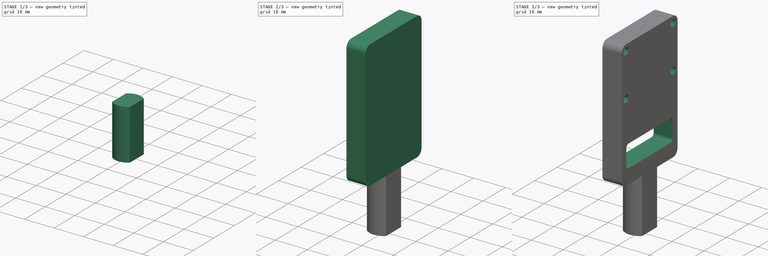
[diagram: build sequence overview — one tinted view per stage of 3, left to right]
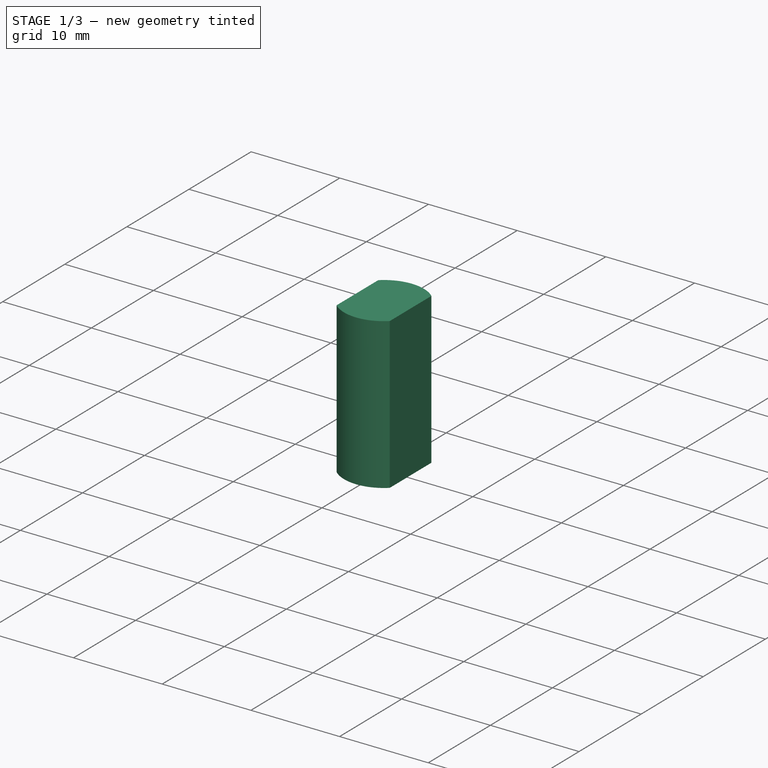
[diagram: stage 1 of 3 — iso view after this stage's code; geometry added in this stage tinted green]
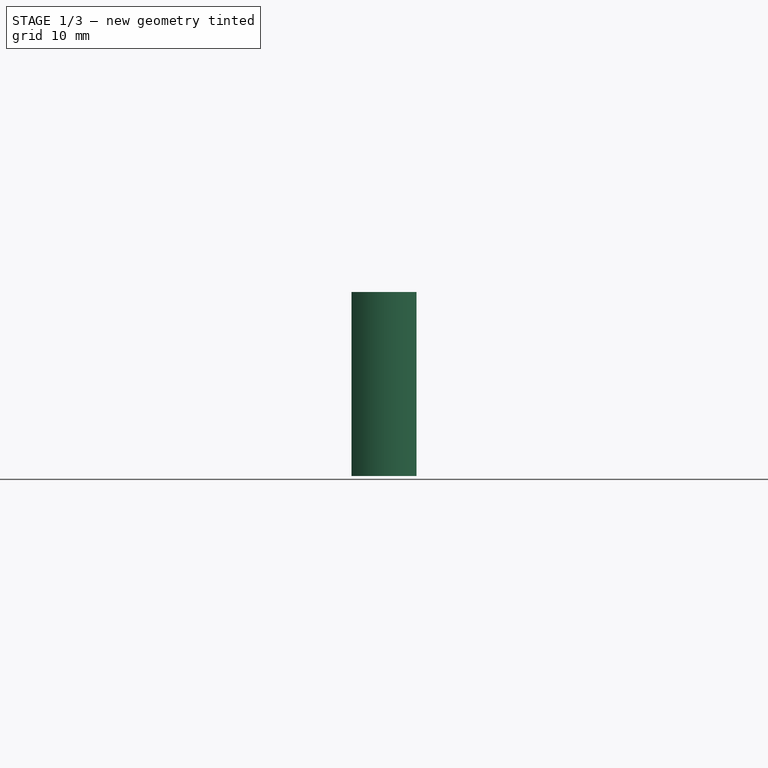
[diagram: stage 1 of 3 — front view after this stage's code; geometry added in this stage tinted green]
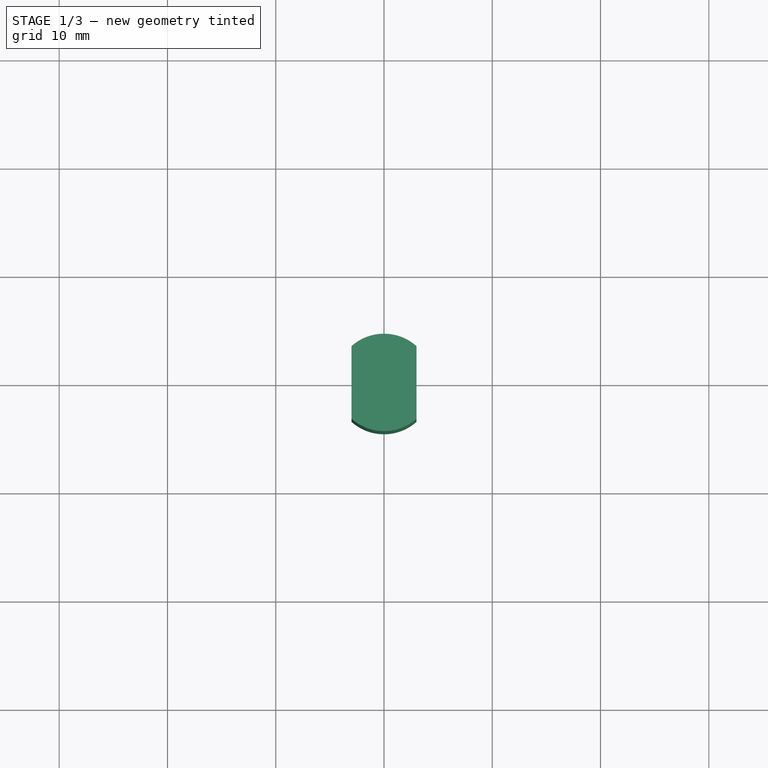
[diagram: stage 1 of 3 — top view after this stage's code; geometry added in this stage tinted green]
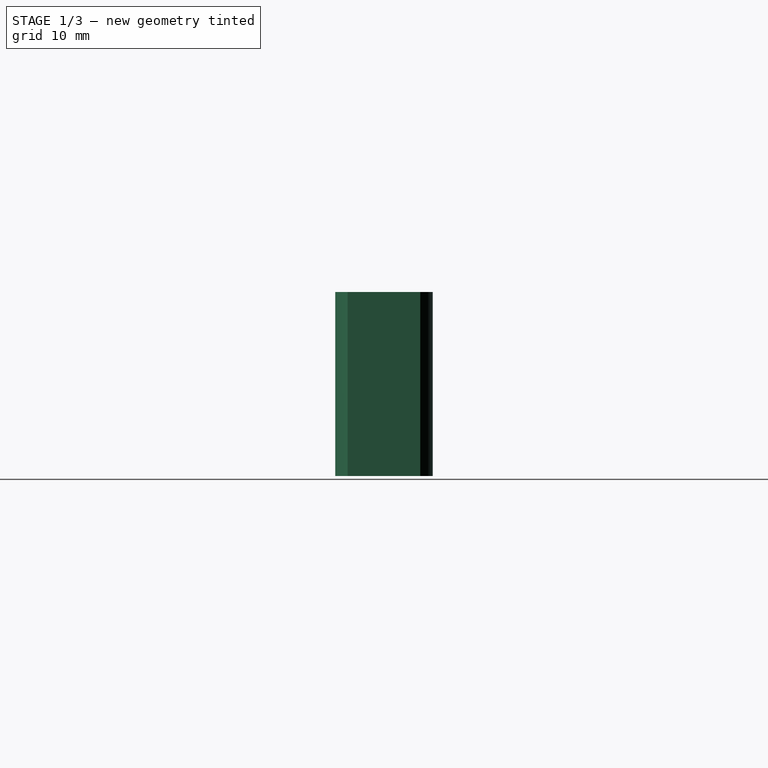
[diagram: stage 1 of 3 — right view after this stage's code; geometry added in this stage tinted green]
FCSTD DOCUMENT  (FreeCAD 0.18.4R)
Label: camera_mount
License: All rights reserved
LicenseURL: http://en.wikipedia.org/wiki/All_rights_reserved
objects: Sketcher::SketchObject×5, PartDesign::Pocket×3, PartDesign::Pad×2, PartDesign::Body×1
note: 16 computed .brp shape members not serialized (recipe doc carries the construction recipe); baked Part::Feature solids carry a one-line shape summary decoded from their .brp

FEATURE [Sketcher::SketchObject] Sketch
  MapMode = 5
  Support = -> [XY_Plane]
  sketch-geometry (4):
    g0: LineSegment StartX=1.5 StartY=2 StartZ=0 EndX=1.5 EndY=-2 EndZ=0
    g1: LineSegment StartX=-1.5 StartY=2 StartZ=0 EndX=-1.5 EndY=-2 EndZ=0
    g2: ArcOfCircle CenterX=0 CenterY=0 CenterZ=0 NormalX=0 NormalY=0 NormalZ=1 AngleXU=0 Radius=2.5 StartAngle=0.927295 EndAngle=2.2143
    g3: ArcOfCircle CenterX=-2e-16 CenterY=-1e-16 CenterZ=0 NormalX=0 NormalY=0 NormalZ=1 AngleXU=0 Radius=2.5 StartAngle=4.06889 EndAngle=5.35589
  constraints (11):
    c: Symmetric(g0,g0,g-1)
    c: Symmetric(g1,g1,g-1)
    c: Coincident(g2,g-1)
    c: Coincident(g2,g1)
    c: Coincident(g2,g0)
    c: Coincident(g3,g1)
    c: Coincident(g3,g0)
    c: Radius(g2) = 2.5
    c: Equal(g2,g3)
    c: DistanceX(g1,g0) = 3
    c: Symmetric(g0,g1,g2)
FEATURE [Sketcher::SketchObject] Sketch001
  MapMode = 5
  Support = -> [XY_Plane]
  sketch-geometry (4):
    g0: LineSegment StartX=-3 StartY=3.3541 StartZ=0 EndX=-3 EndY=-3.3541 EndZ=0
    g1: LineSegment StartX=3 StartY=3.3541 StartZ=0 EndX=3 EndY=-3.3541 EndZ=0
    g2: ArcOfCircle CenterX=0 CenterY=0 CenterZ=0 NormalX=0 NormalY=0 NormalZ=1 AngleXU=0 Radius=4.5 StartAngle=0.841069 EndAngle=2.30052
    g3: ArcOfCircle CenterX=0 CenterY=0 CenterZ=0 NormalX=0 NormalY=0 NormalZ=1 AngleXU=0 Radius=4.5 StartAngle=3.98266 EndAngle=5.44212
  constraints (12):
    c: Symmetric(g0,g0,g-1)
    c: Symmetric(g1,g1,g-1)
    c: DistanceX(g0,g1) = 6
    c: DistanceX(g-1,g1) = 3
    c: Coincident(g2,g-1)
    c: Coincident(g2,g1)
    c: Coincident(g2,g0)
    c: Coincident(g3,g2)
    c: Coincident(g3,g0)
    c: Coincident(g3,g1)
    c: Radius(g2) = 4.5
    c: Equal(g2,g3)
FEATURE [PartDesign::Pad] Pad
  Length = 17
  Length2 = 100
  Profile = -> Sketch001
  Type = 0
FEATURE [PartDesign::Pocket] Pocket
  BaseFeature = -> Pad
  Length = 7
  Length2 = 100
  Profile = -> Sketch
  Reversed = true
  Type = 0
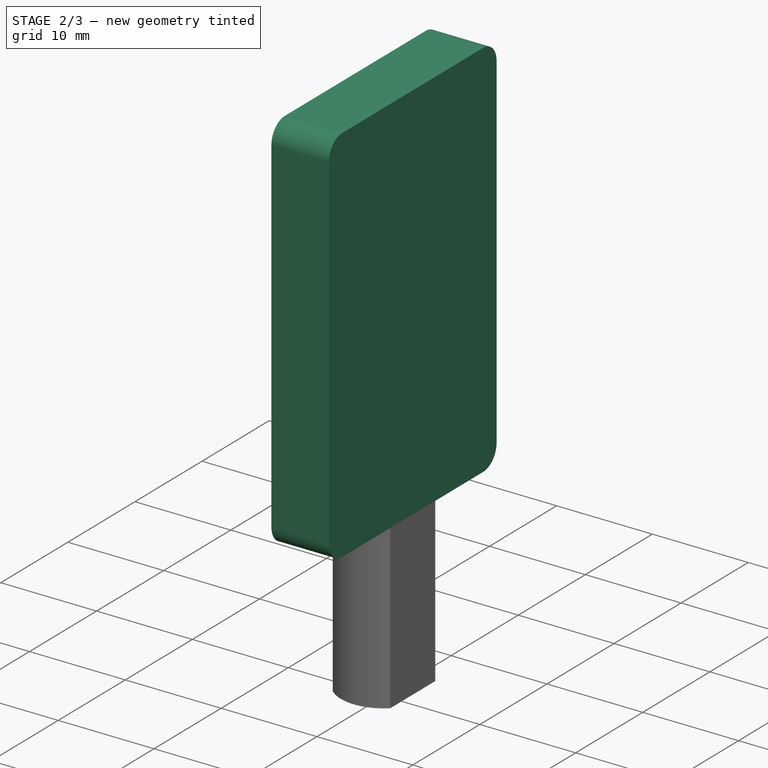
[diagram: stage 2 of 3 — iso view after this stage's code; geometry added in this stage tinted green]
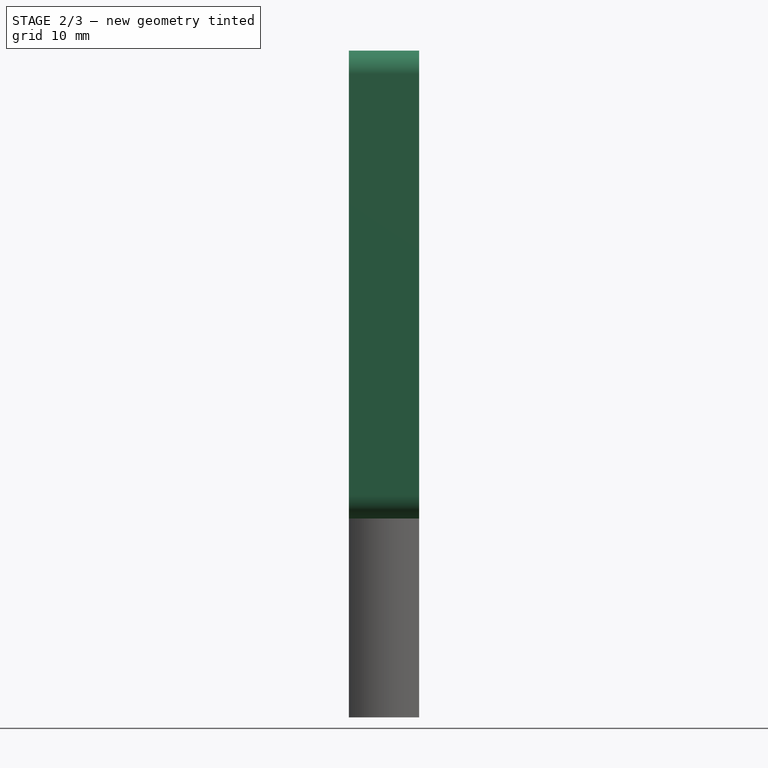
[diagram: stage 2 of 3 — front view after this stage's code; geometry added in this stage tinted green]
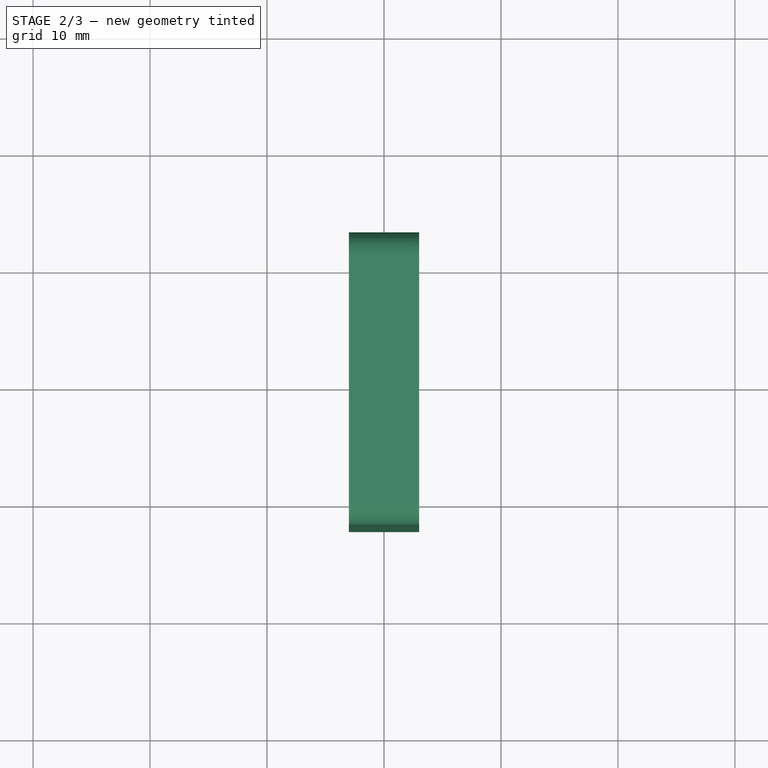
[diagram: stage 2 of 3 — top view after this stage's code; geometry added in this stage tinted green]
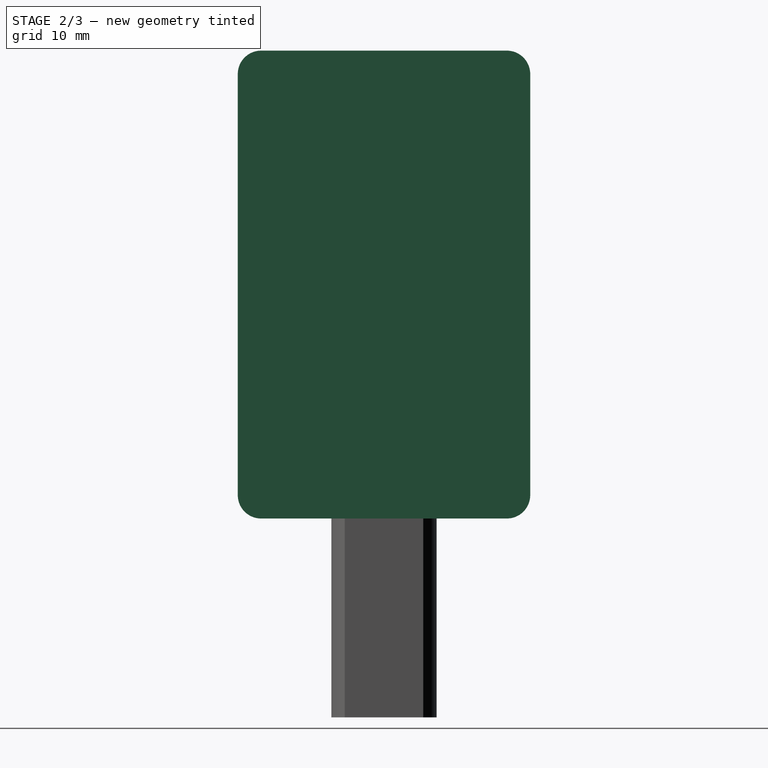
[diagram: stage 2 of 3 — right view after this stage's code; geometry added in this stage tinted green]
FEATURE [Sketcher::SketchObject] Sketch002
  ExternalGeometry = -> [Pocket]
  MapMode = 5
  Placement = pos=(0,0,0) rot=(0.57735,0.57735,0.57735;2.0944rad)
  Support = -> [YZ_Plane]
  sketch-geometry (8):
    g0: LineSegment StartX=-10.5 StartY=17 StartZ=0 EndX=10.5 EndY=17 EndZ=0
    g1: LineSegment StartX=-10.5 StartY=57 StartZ=0 EndX=10.5 EndY=57 EndZ=0
    g2: LineSegment StartX=12.5 StartY=55 StartZ=0 EndX=12.5 EndY=19 EndZ=0
    g3: LineSegment StartX=-12.5 StartY=55 StartZ=0 EndX=-12.5 EndY=19 EndZ=0
    g4: ArcOfCircle CenterX=10.5 CenterY=55 CenterZ=0 NormalX=0 NormalY=0 NormalZ=1 AngleXU=0 Radius=2 StartAngle=-3.66462e-11 EndAngle=1.5708
    g5: ArcOfCircle CenterX=-10.5 CenterY=55 CenterZ=0 NormalX=0 NormalY=0 NormalZ=1 AngleXU=0 Radius=2 StartAngle=1.5708 EndAngle=3.14159
    g6: ArcOfCircle CenterX=-10.5 CenterY=19 CenterZ=0 NormalX=0 NormalY=0 NormalZ=1 AngleXU=0 Radius=2 StartAngle=3.14159 EndAngle=4.71239
    g7: ArcOfCircle CenterX=10.5 CenterY=19 CenterZ=0 NormalX=0 NormalY=0 NormalZ=1 AngleXU=0 Radius=2 StartAngle=4.71239 EndAngle=6.28319
  constraints (19):
    c: Vertical(g2)
    c: Vertical(g3)
    c: Equal(g3,g2)
    c: PointOnObject(g-3,g0)
    c: Tangent(g2,g4) = 1.5708
    c: Tangent(g1,g4) = 1.5708
    c: Tangent(g1,g5) = 1.5708
    c: Tangent(g3,g5) = -1.5708
    c: Tangent(g3,g6) = -1.5708
    c: Tangent(g0,g6) = -1.5708
    c: Tangent(g0,g7) = -1.5708
    c: Tangent(g2,g7) = 1.5708
    c: Radius(g4) = 2
    c: Equal(g4,g5)
    c: Equal(g4,g6)
    c: Equal(g4,g7)
    c: Symmetric(g0,g0,g-2)
    c: DistanceX(g3,g2) = 25
    c: DistanceY(g0,g1) = 40
FEATURE [Sketcher::SketchObject] Sketch003
  ExternalGeometry = -> [Sketch002]
  MapMode = 5
  Placement = pos=(0,0,0) rot=(0.57735,0.57735,0.57735;2.0944rad)
  Support = -> [YZ_Plane]
  sketch-geometry (4):
    g0: Circle CenterX=-10.5 CenterY=55 CenterZ=0 NormalX=0 NormalY=0 NormalZ=1 AngleXU=0 Radius=1.1
    g1: Circle CenterX=10.5 CenterY=55 CenterZ=0 NormalX=0 NormalY=0 NormalZ=1 AngleXU=0 Radius=1.1
    g2: Circle CenterX=10.5 CenterY=41.5 CenterZ=0 NormalX=0 NormalY=0 NormalZ=1 AngleXU=0 Radius=1.1
    g3: Circle CenterX=-10.5 CenterY=41.5 CenterZ=0 NormalX=0 NormalY=0 NormalZ=1 AngleXU=0 Radius=1.1
  constraints (12):
    c: Radius(g2) = 1.1
    c: Equal(g2,g1)
    c: Equal(g2,g0)
    c: Equal(g2,g3)
    c: DistanceY(g0,g-3) = 2
    c: DistanceX(g-4,g0) = 2
    c: Horizontal(g1,g0)
    c: Horizontal(g3,g2)
    c: Vertical(g0,g3)
    c: DistanceX(g1,g-5) = 2
    c: Vertical(g1,g2)
    c: DistanceY(g3,g-3) = 15.5
FEATURE [Sketcher::SketchObject] Sketch004
  ExternalGeometry = -> [Sketch003]
  MapMode = 5
  Placement = pos=(0,0,0) rot=(0.57735,0.57735,0.57735;2.0944rad)
  Support = -> [YZ_Plane]
  sketch-geometry (8):
    g0: LineSegment StartX=-9.4 StartY=28.5 StartZ=0 EndX=9.4 EndY=28.5 EndZ=0
    g1: LineSegment StartX=9.4 StartY=21.5 StartZ=0 EndX=-9.4 EndY=21.5 EndZ=0
    g2: LineSegment StartX=10.4 StartY=27.5 StartZ=0 EndX=10.4 EndY=22.5 EndZ=0
    g3: LineSegment StartX=-10.4 StartY=27.5 StartZ=0 EndX=-10.4 EndY=22.5 EndZ=0
    g4: ArcOfCircle CenterX=9.4 CenterY=27.5 CenterZ=0 NormalX=0 NormalY=0 NormalZ=1 AngleXU=0 Radius=1 StartAngle=1.03059e-11 EndAngle=1.5708
    g5: ArcOfCircle CenterX=9.4 CenterY=22.5 CenterZ=0 NormalX=0 NormalY=0 NormalZ=1 AngleXU=0 Radius=1 StartAngle=4.71239 EndAngle=6.28319
    g6: ArcOfCircle CenterX=-9.4 CenterY=22.5 CenterZ=0 NormalX=0 NormalY=0 NormalZ=1 AngleXU=0 Radius=1 StartAngle=3.14159 EndAngle=4.71239
    g7: ArcOfCircle CenterX=-9.4 CenterY=27.5 CenterZ=0 NormalX=0 NormalY=0 NormalZ=1 AngleXU=0 Radius=1 StartAngle=1.5708 EndAngle=3.14159
  constraints (19):
    c: Vertical(g2)
    c: Vertical(g3)
    c: Equal(g2,g3)
    c: Tangent(g0,g4) = 1.5708
    c: Tangent(g2,g4) = 1.5708
    c: Tangent(g2,g5) = 1.5708
    c: Tangent(g1,g5) = 1.5708
    c: Tangent(g1,g6) = 1.5708
    c: Tangent(g3,g6) = -1.5708
    c: Tangent(g3,g7) = -1.5708
    c: Tangent(g0,g7) = 1.5708
    c: Symmetric(g1,g1,g-2)
    c: Radius(g4) = 1
    c: Equal(g4,g7)
    c: Equal(g4,g6)
    c: Equal(g4,g5)
    c: DistanceY(g1,g0) = 7
    c: DistanceX(g3,g2) = 20.8
    c: DistanceY(g0,g-3) = 13
FEATURE [PartDesign::Pad] Pad001
  BaseFeature = -> Pocket
  Length = 3
  Length2 = 3
  Profile = -> Sketch002
  Type = 4
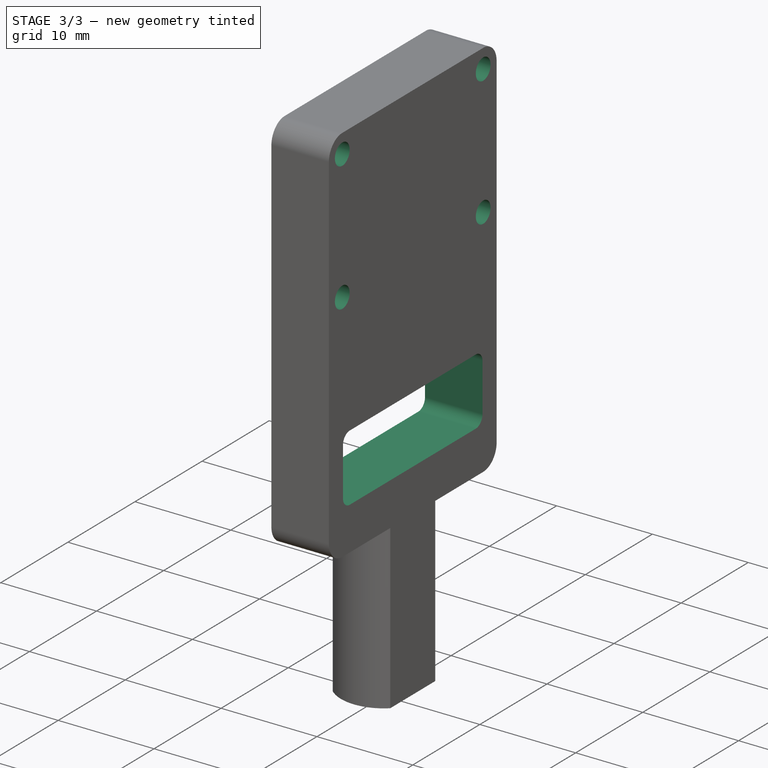
[diagram: stage 3 of 3 — iso view after this stage's code; geometry added in this stage tinted green]
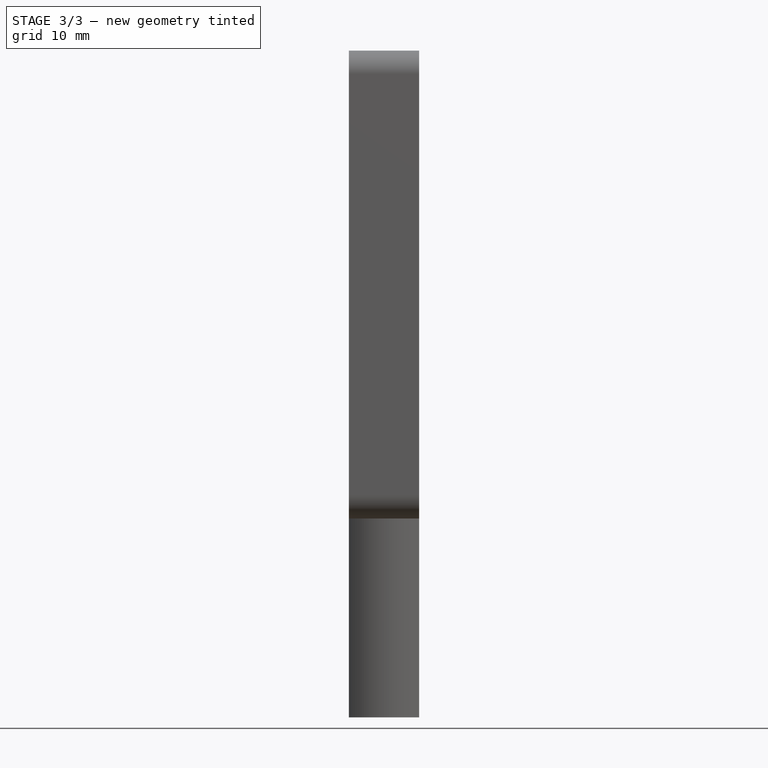
[diagram: stage 3 of 3 — front view after this stage's code; geometry added in this stage tinted green]
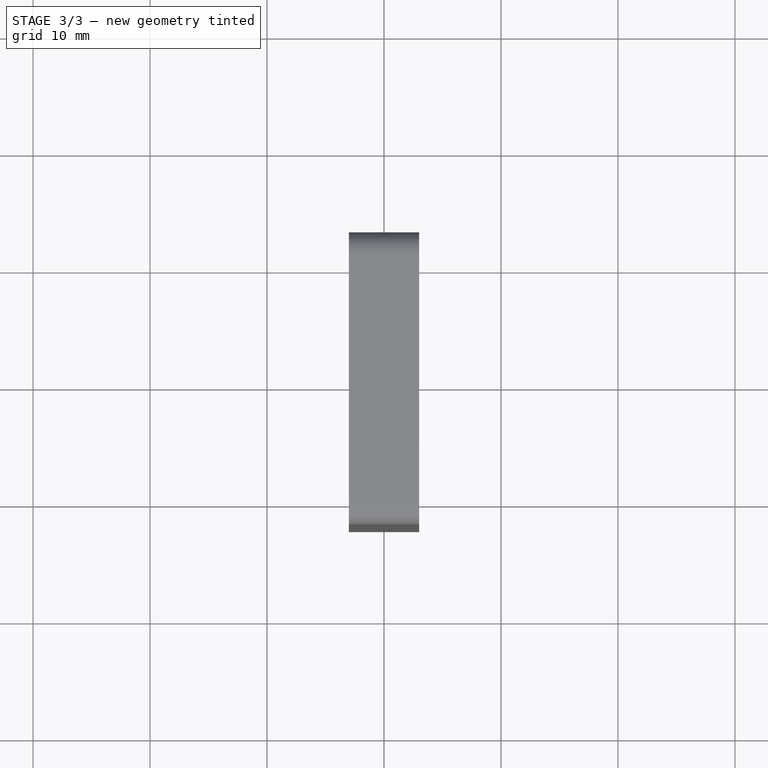
[diagram: stage 3 of 3 — top view after this stage's code; geometry added in this stage tinted green]
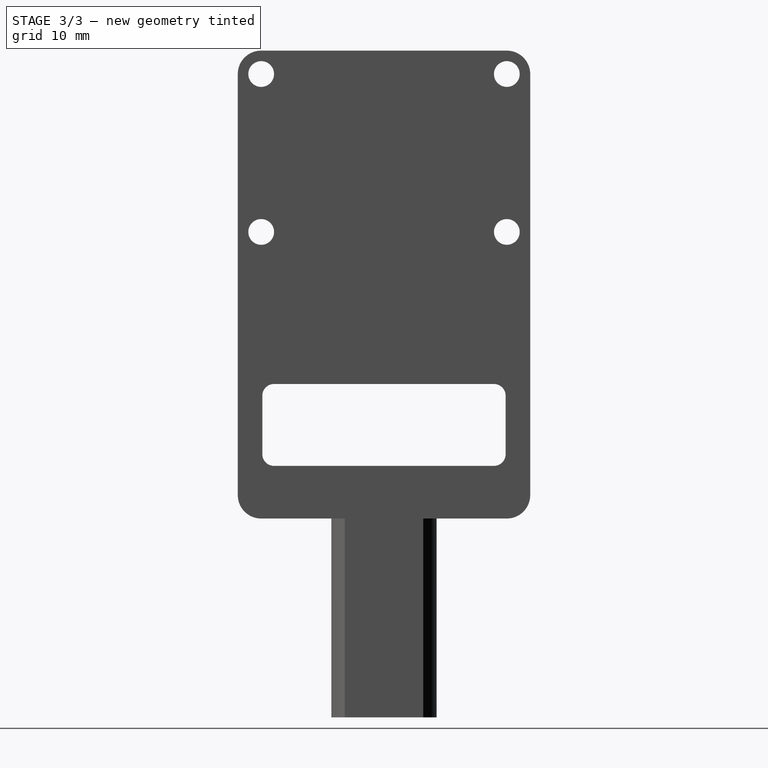
[diagram: stage 3 of 3 — right view after this stage's code; geometry added in this stage tinted green]
FEATURE [PartDesign::Pocket] Pocket001
  BaseFeature = -> Pad001
  Length = 5
  Length2 = 5
  Profile = -> Sketch003
  Type = 4
FEATURE [PartDesign::Pocket] Pocket002
  BaseFeature = -> Pocket001
  Length = 5
  Length2 = 5
  Profile = -> Sketch004
  Type = 4
FEATURE [PartDesign::Body] Body
  Group = -> [Sketch,Sketch001,Pad,Pocket,Sketch002,Sketch003,Sketch004,Pad001,Pocket001,Pocket002]
  Origin = -> Origin
  Tip = -> Pocket002
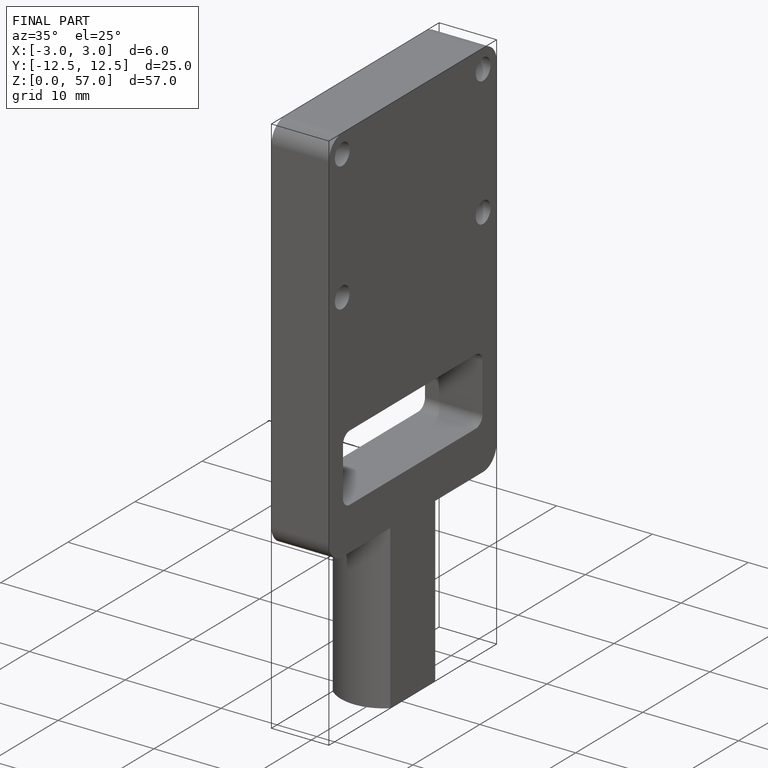
[diagram: finished part — iso view with bounding-box wireframe]
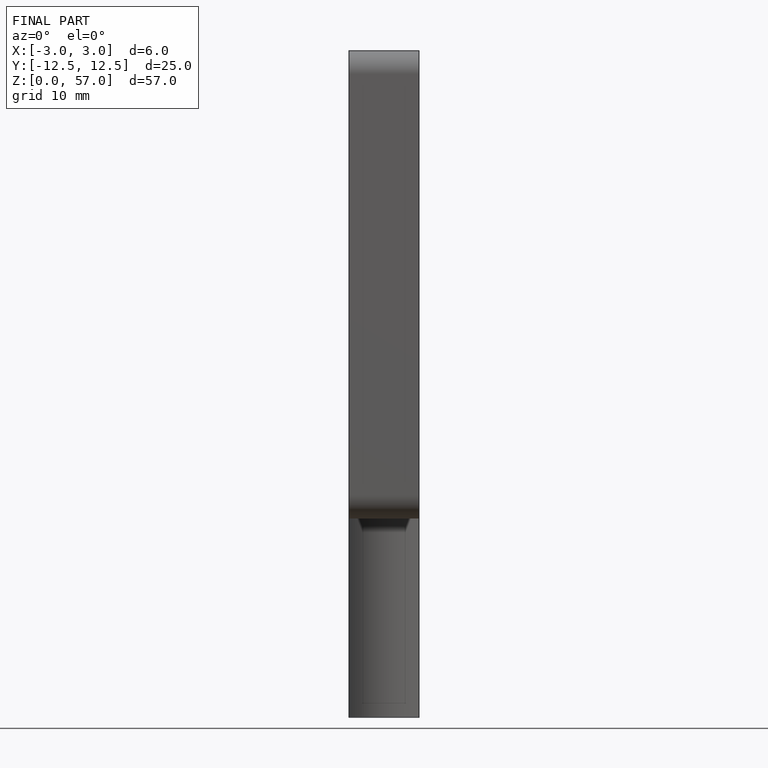
[diagram: finished part — front view with bounding-box wireframe]
